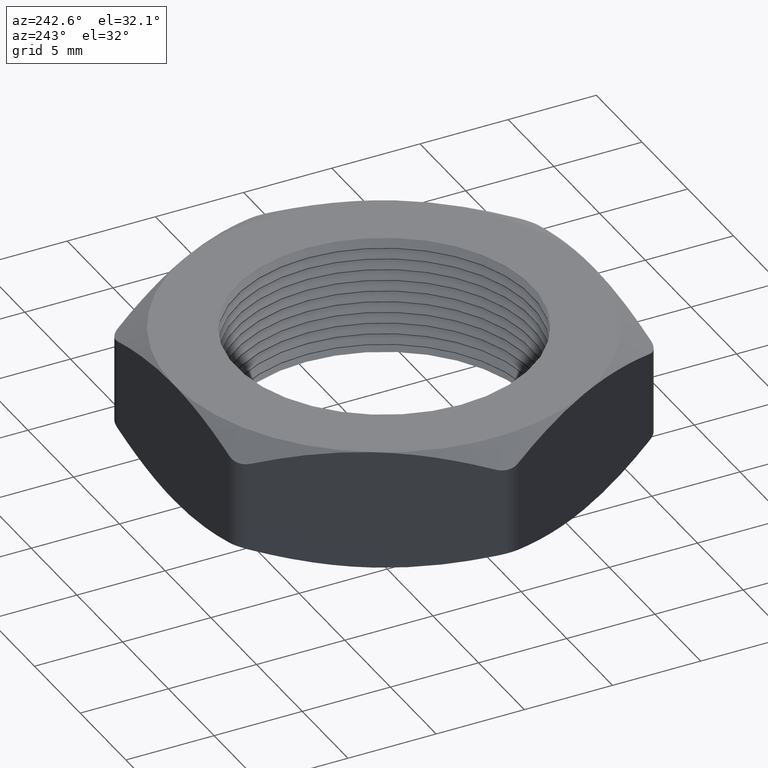
[diagram: clean part render]
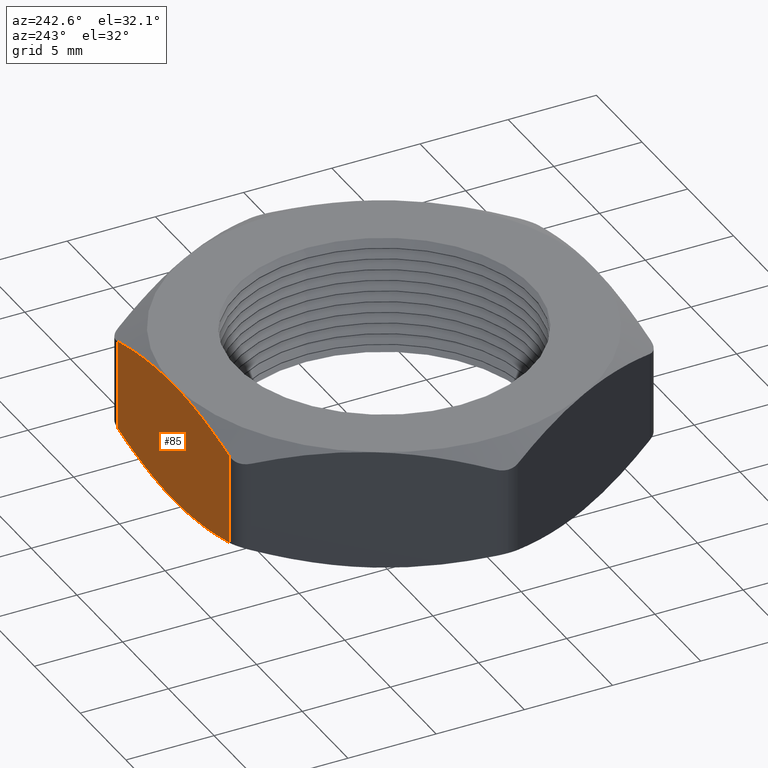
[diagram: same view with one face highlighted and labeled with its STEP entity id]
A machine part, auxiliary view. The second image highlights one B-rep face of the part: STEP entity #85.
In plain terms, the highlighted planar face has unit normal (0, -1, 0).
Its self-contained STEP definition (entity closure, byte-faithful):
#85 = ADVANCED_FACE ( 'NONE', ( #702 ), #699, .F. ) ;
#86 = ORIENTED_EDGE ( 'NONE', *, *, #122, .F. ) ;
#93 = ORIENTED_EDGE ( 'NONE', *, *, #94, .T. ) ;
#94 = EDGE_CURVE ( 'NONE', #114, #95, #680, .T. ) ;
#95 = VERTEX_POINT ( 'NONE', #720 ) ;
#114 = VERTEX_POINT ( 'NONE', #738 ) ;
#122 = EDGE_CURVE ( 'NONE', #123, #403, #783, .T. ) ;
#123 = VERTEX_POINT ( 'NONE', #782 ) ;
#128 = ORIENTED_EDGE ( 'NONE', *, *, #129, .F. ) ;
#129 = EDGE_CURVE ( 'NONE', #403, #95, #820, .T. ) ;
#160 = VERTEX_POINT ( 'NONE', #878 ) ;
#161 = ORIENTED_EDGE ( 'NONE', *, *, #162, .F. ) ;
#162 = EDGE_CURVE ( 'NONE', #114, #160, #866, .T. ) ;
#178 = EDGE_CURVE ( 'NONE', #123, #179, #921, .T. ) ;
#179 = VERTEX_POINT ( 'NONE', #912 ) ;
#187 = ORIENTED_EDGE ( 'NONE', *, *, #188, .F. ) ;
#188 = EDGE_CURVE ( 'NONE', #160, #179, #1016, .T. ) ;
#269 = ORIENTED_EDGE ( 'NONE', *, *, #178, .T. ) ;
#270 = EDGE_LOOP ( 'NONE', ( #86, #269, #187, #161, #93, #128 ) ) ;
#403 = VERTEX_POINT ( 'NONE', #1413 ) ;
#680 = LINE ( 'NONE', #733, #722 ) ;
#688 = DIRECTION ( 'NONE',  ( 0.0000000000000000000, 0.0000000000000000000, -1.000000000000000000 ) ) ;
#689 = DIRECTION ( 'NONE',  ( 0.0000000000000000000, -1.000000000000000000, 0.0000000000000000000 ) ) ;
#698 = CARTESIAN_POINT ( 'NONE',  ( 0.2713546265191240600, 0.4700000000000000300, 0.2700000000000000200 ) ) ;
#699 = PLANE ( 'NONE',  #701 ) ;
#701 = AXIS2_PLACEMENT_3D ( 'NONE', #698, #689, #688 ) ;
#702 = FACE_OUTER_BOUND ( 'NONE', #270, .T. ) ;
#720 = CARTESIAN_POINT ( 'NONE',  ( 0.2424871130596427700, 0.4700000000000000300, 0.03398671253167198600 ) ) ;
#721 = DIRECTION ( 'NONE',  ( 0.0000000000000000000, 0.0000000000000000000, -1.000000000000000000 ) ) ;
#722 = VECTOR ( 'NONE', #721, 39.37007874015748100 ) ;
#733 = CARTESIAN_POINT ( 'NONE',  ( 0.2424871130596427400, 0.4700000000000000300, 0.2700000000000000200 ) ) ;
#738 = CARTESIAN_POINT ( 'NONE',  ( 0.2424871130596427700, 0.4700000000000000300, 0.2360132874683280000 ) ) ;
#773 = CARTESIAN_POINT ( 'NONE',  ( 0.0000000000000000000, 0.4700000000000000300, 0.0000000000000000000 ) ) ;
#774 = CARTESIAN_POINT ( 'NONE',  ( -0.04091935070413378600, 0.4700000000000002000, 3.601557413522222700E-018 ) ) ;
#775 = CARTESIAN_POINT ( 'NONE',  ( -0.08157013425875048200, 0.4700000000000002500, 0.003128714245236038400 ) ) ;
#776 = CARTESIAN_POINT ( 'NONE',  ( -0.1421943644188318200, 0.4700000000000000800, 0.01192182493163373600 ) ) ;
#777 = CARTESIAN_POINT ( 'NONE',  ( -0.1623445008328038600, 0.4700000000000000300, 0.01552784631888718500 ) ) ;
#778 = CARTESIAN_POINT ( 'NONE',  ( -0.2025429287167218600, 0.4700000000000000300, 0.02392634740653176700 ) ) ;
#779 = CARTESIAN_POINT ( 'NONE',  ( -0.2226267730600179600, 0.4700000000000000800, 0.02872934326982302200 ) ) ;
#780 = CARTESIAN_POINT ( 'NONE',  ( -0.2424871130596479900, 0.4700000000000000300, 0.03398671253167297200 ) ) ;
#782 = CARTESIAN_POINT ( 'NONE',  ( -0.2424871130596479900, 0.4700000000000000300, 0.03398671253167297200 ) ) ;
#783 = B_SPLINE_CURVE_WITH_KNOTS ( 'NONE', 3,
 ( #780, #779, #778, #777, #776, #775, #774, #773 ),
 .UNSPECIFIED., .F., .F.,
 ( 4, 2, 2, 4 ),
 ( 0.01341981514900701500, 0.01497471775535554900, 0.01652962036170408500, 0.01963942557440115000 ),
 .UNSPECIFIED. ) ;
#811 = CARTESIAN_POINT ( 'NONE',  ( 0.2424871130596427700, 0.4700000000000000300, 0.03398671253167198600 ) ) ;
#812 = CARTESIAN_POINT ( 'NONE',  ( 0.2031676336289412700, 0.4700000000000002000, 0.02357817861156995600 ) ) ;
#813 = CARTESIAN_POINT ( 'NONE',  ( 0.1633585442979101600, 0.4700000000000002500, 0.01503121252536439100 ) ) ;
#814 = CARTESIAN_POINT ( 'NONE',  ( 0.1026060606553001200, 0.4700000000000000800, 0.006160620382331613700 ) ) ;
#815 = CARTESIAN_POINT ( 'NONE',  ( 0.08215043834041815800, 0.4700000000000000300, 0.003861657395977669200 ) ) ;
#816 = CARTESIAN_POINT ( 'NONE',  ( 0.04097593725748398300, 0.4700000000000000300, 0.0007742288115324220600 ) ) ;
#817 = CARTESIAN_POINT ( 'NONE',  ( 0.02045473893617669500, 0.4700000000000000800, -8.892734354375858800E-019 ) ) ;
#818 = CARTESIAN_POINT ( 'NONE',  ( 0.0000000000000000000, 0.4700000000000000300, 0.0000000000000000000 ) ) ;
#820 = B_SPLINE_CURVE_WITH_KNOTS ( 'NONE', 3,
 ( #818, #817, #816, #815, #814, #813, #812, #811 ),
 .UNSPECIFIED., .F., .F.,
 ( 4, 2, 2, 4 ),
 ( 0.01963942557440115000, 0.02119395302103666700, 0.02274848046767218000, 0.02585753536094321000 ),
 .UNSPECIFIED. ) ;
#857 = CARTESIAN_POINT ( 'NONE',  ( 0.0000000000000000000, 0.4700000000000000300, 0.2700000000000000200 ) ) ;
#858 = CARTESIAN_POINT ( 'NONE',  ( 0.02045473893617687900, 0.4699999999999999700, 0.2699999999999999600 ) ) ;
#859 = CARTESIAN_POINT ( 'NONE',  ( 0.04097593725748414900, 0.4700000000000000800, 0.2692257711884675800 ) ) ;
#860 = CARTESIAN_POINT ( 'NONE',  ( 0.08215043834041828300, 0.4700000000000000300, 0.2661383426040223000 ) ) ;
#861 = CARTESIAN_POINT ( 'NONE',  ( 0.1026060606553003700, 0.4699999999999999700, 0.2638393796176684000 ) ) ;
#862 = CARTESIAN_POINT ( 'NONE',  ( 0.1633585442979103900, 0.4700000000000000300, 0.2549687874746355300 ) ) ;
#863 = CARTESIAN_POINT ( 'NONE',  ( 0.2031676336289412500, 0.4700000000000000800, 0.2464218213884300500 ) ) ;
#864 = CARTESIAN_POINT ( 'NONE',  ( 0.2424871130596427700, 0.4700000000000000300, 0.2360132874683280000 ) ) ;
#866 = B_SPLINE_CURVE_WITH_KNOTS ( 'NONE', 3,
 ( #864, #863, #862, #861, #860, #859, #858, #857 ),
 .UNSPECIFIED., .F., .F.,
 ( 4, 2, 2, 4 ),
 ( 0.03616374981959929300, 0.03927291122409212000, 0.04082749192633852700, 0.04238207262858494100 ),
 .UNSPECIFIED. ) ;
#878 = CARTESIAN_POINT ( 'NONE',  ( 0.0000000000000000000, 0.4700000000000000300, 0.2700000000000000200 ) ) ;
#912 = CARTESIAN_POINT ( 'NONE',  ( -0.2424871130596479600, 0.4700000000000000300, 0.2360132874683270600 ) ) ;
#913 = DIRECTION ( 'NONE',  ( 0.0000000000000000000, 0.0000000000000000000, 1.000000000000000000 ) ) ;
#914 = VECTOR ( 'NONE', #913, 39.37007874015748100 ) ;
#915 = CARTESIAN_POINT ( 'NONE',  ( -0.2424871130596429300, 0.4700000000000000300, 0.2700000000000000200 ) ) ;
#921 = LINE ( 'NONE', #915, #914 ) ;
#1006 = CARTESIAN_POINT ( 'NONE',  ( -0.2424871130596479600, 0.4700000000000000300, 0.2360132874683270600 ) ) ;
#1007 = CARTESIAN_POINT ( 'NONE',  ( -0.2226267730600179900, 0.4699999999999999700, 0.2412706567301771100 ) ) ;
#1008 = CARTESIAN_POINT ( 'NONE',  ( -0.2025429287167221400, 0.4700000000000000800, 0.2460736525934682000 ) ) ;
#1009 = CARTESIAN_POINT ( 'NONE',  ( -0.1623445008328041100, 0.4700000000000000300, 0.2544721536811128100 ) ) ;
#1010 = CARTESIAN_POINT ( 'NONE',  ( -0.1421943644188318200, 0.4699999999999999700, 0.2580781750683662200 ) ) ;
#1011 = CARTESIAN_POINT ( 'NONE',  ( -0.08157013425875044000, 0.4700000000000000300, 0.2668712857547640400 ) ) ;
#1012 = CARTESIAN_POINT ( 'NONE',  ( -0.04091935070413360600, 0.4700000000000000800, 0.2700000000000000700 ) ) ;
#1013 = CARTESIAN_POINT ( 'NONE',  ( 0.0000000000000000000, 0.4700000000000000300, 0.2700000000000000200 ) ) ;
#1016 = B_SPLINE_CURVE_WITH_KNOTS ( 'NONE', 3,
 ( #1013, #1012, #1011, #1010, #1009, #1008, #1007, #1006 ),
 .UNSPECIFIED., .F., .F.,
 ( 4, 2, 2, 4 ),
 ( 0.04238207262858494100, 0.04549198437820854700, 0.04704694025302034300, 0.04860189612783214600 ),
 .UNSPECIFIED. ) ;
#1413 = CARTESIAN_POINT ( 'NONE',  ( 0.0000000000000000000, 0.4700000000000000300, 0.0000000000000000000 ) ) ;